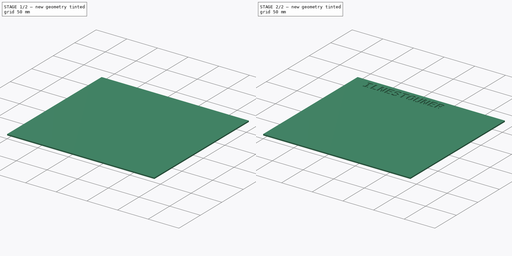
[diagram: build sequence overview — one tinted view per stage of 2, left to right]
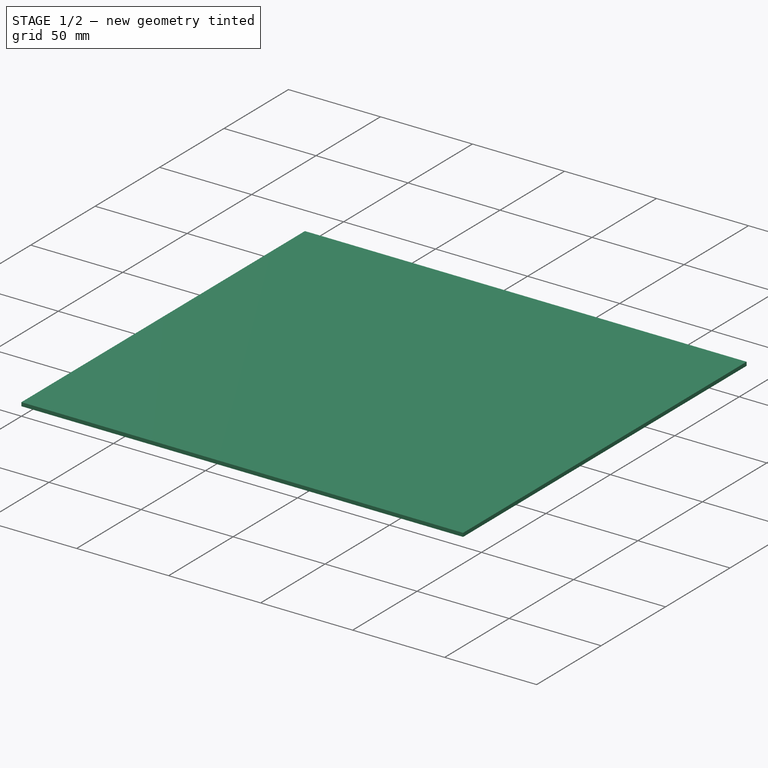
[diagram: stage 1 of 2 — iso view after this stage's code; geometry added in this stage tinted green]
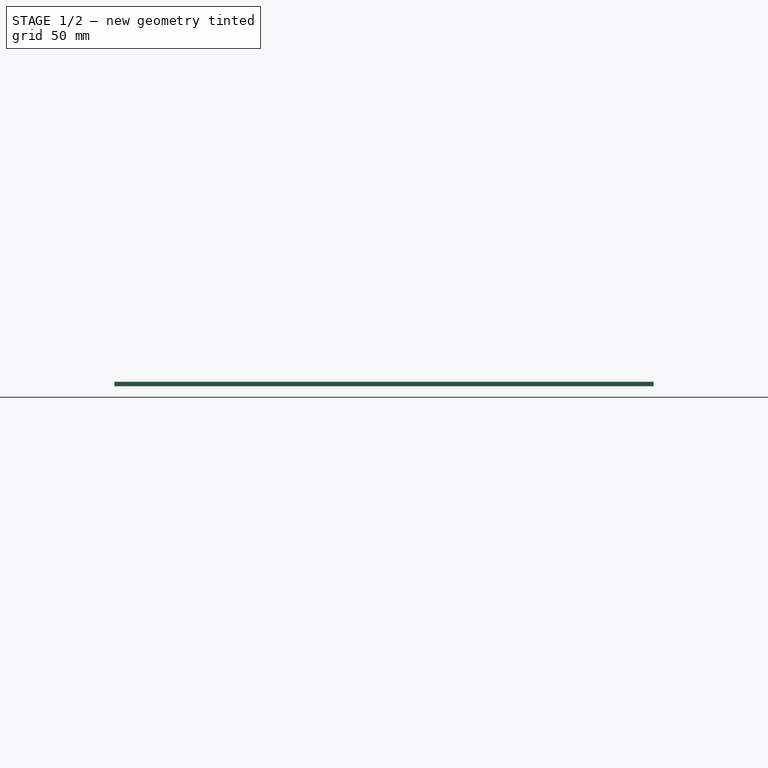
[diagram: stage 1 of 2 — front view after this stage's code; geometry added in this stage tinted green]
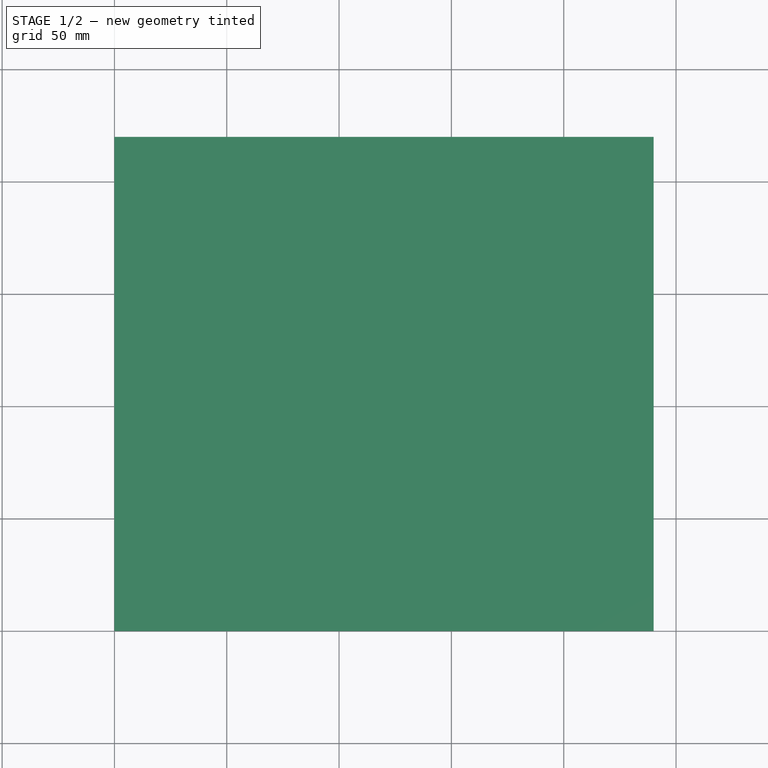
[diagram: stage 1 of 2 — top view after this stage's code; geometry added in this stage tinted green]
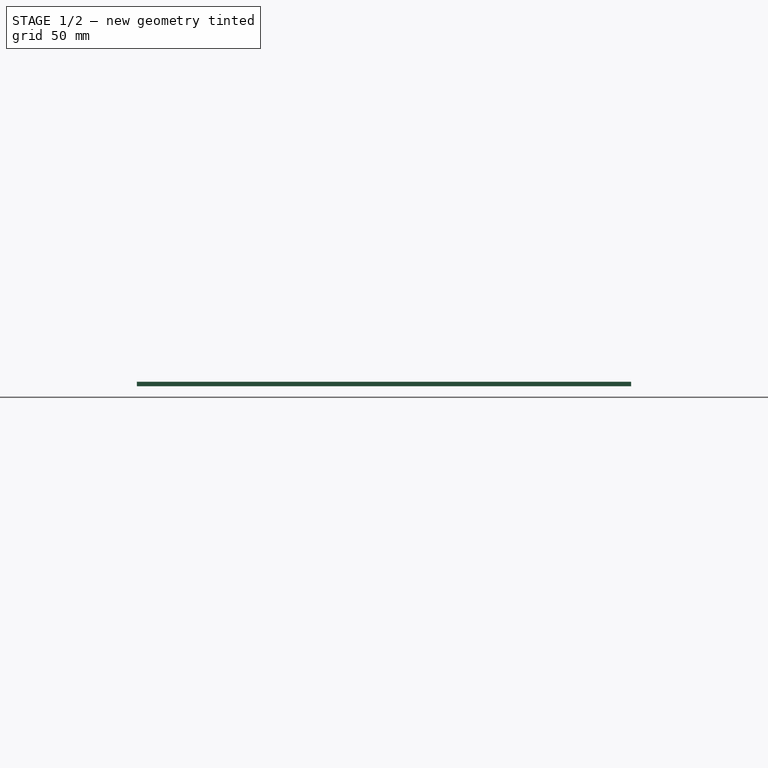
[diagram: stage 1 of 2 — right view after this stage's code; geometry added in this stage tinted green]
FCSTD DOCUMENT  (FreeCAD 0.20R29177 +233 (Git))
Label: world-clock-french
License: All rights reserved
LicenseURL: http://en.wikipedia.org/wiki/All_rights_reserved
objects: Sketcher::SketchObject×2, Spreadsheet::Sheet×1, PartDesign::Pad×1, PartDesign::Body×1, Part::Part2DObjectPython×1, Part::Extrusion×1, Part::Cut×1
note: 8 computed .brp shape members not serialized (recipe doc carries the construction recipe); baked Part::Feature solids carry a one-line shape summary decoded from their .brp

FEATURE [Spreadsheet::Sheet] Spreadsheet
  cells = A1=grid_x; B1(grid_x)=11; A2=grid_y; B2(grid_y)=10; A3=margin; B3(margin)=10; A4=cell_x; B4(cell_x)=20; A5=cell_y; B5(cell_y)=20; A6=first_layer; B6(first_layer)=0.2; A7=overall_width; B7(overall_width)==grid_x * cell_x + 2 * margin; A8=overall_height; B8(overall_height)==grid_y * cell_y + 2 * margin; A9=thickness; B9(thickness)=2; A10=letter_depth; B10(letter_depth)==thickness - first_layer; A11=offset_x; B11(offset_x)=10; A12=offset_y; B12(offset_y)=10; A13=letter_size; B13(letter_size)=15
FEATURE [Sketcher::SketchObject] Sketch
  FullyConstrained = true
  MapMode = 5
  Support = -> [XY_Plane]
  expr: Constraints[10] = Spreadsheet.overall_height
  expr: Constraints[9] = Spreadsheet.overall_width
  sketch-geometry (4):
    g0: LineSegment StartX=0 StartY=0 StartZ=0 EndX=240 EndY=0 EndZ=0
    g1: LineSegment StartX=240 StartY=0 StartZ=0 EndX=240 EndY=220 EndZ=0
    g2: LineSegment StartX=240 StartY=220 StartZ=0 EndX=0 EndY=220 EndZ=0
    g3: LineSegment StartX=0 StartY=220 StartZ=0 EndX=0 EndY=0 EndZ=0
  constraints (11):
    c: Coincident(g0,g1)
    c: Coincident(g1,g2)
    c: Coincident(g2,g3)
    c: Coincident(g3,g0)
    c: Horizontal(g0)
    c: Horizontal(g2)
    c: Vertical(g1)
    c: Vertical(g3)
    c: Coincident(g0,g-1)
    c: DistanceX(g0,g0) = 240
    c: DistanceY(g3,g3) = 220
FEATURE [PartDesign::Pad] Pad
  Direction = (0,0,1)
  Length = 2
  Length2 = 10
  Profile = -> Sketch
  ReferenceAxis = -> Sketch [N_Axis]
  Type = 0
  expr: Length = Spreadsheet.thickness
FEATURE [Sketcher::SketchObject] Sketch001  label="Letters Sketch"
  ExternalGeometry = -> [Pad]
  FullyConstrained = true
  MapMode = 5
  Placement = pos=(0,0,2) rot=(0,0,1;0rad)
  Support = -> [Pad]
  expr: Constraints[10] = Spreadsheet.margin
  expr: Constraints[11] = Spreadsheet.margin
  expr: Constraints[8] = Spreadsheet.margin
  expr: Constraints[9] = Spreadsheet.margin
  sketch-geometry (4):
    g0: LineSegment StartX=10 StartY=10 StartZ=0 EndX=230 EndY=10 EndZ=0
    g1: LineSegment StartX=230 StartY=10 StartZ=0 EndX=230 EndY=210 EndZ=0
    g2: LineSegment StartX=230 StartY=210 StartZ=0 EndX=10 EndY=210 EndZ=0
    g3: LineSegment StartX=10 StartY=210 StartZ=0 EndX=10 EndY=10 EndZ=0
  constraints (12):
    c: Coincident(g0,g1)
    c: Coincident(g1,g2)
    c: Coincident(g2,g3)
    c: Coincident(g3,g0)
    c: Horizontal(g0)
    c: Horizontal(g2)
    c: Vertical(g1)
    c: Vertical(g3)
    c: DistanceX(g-1,g0) = 10
    c: DistanceY(g-1,g0) = 10
    c: DistanceX(g1,g-4) = 10
    c: DistanceY(g1,g-4) = 10
FEATURE [PartDesign::Body] Body
  Group = -> [Sketch,Pad,Sketch001]
  Origin = -> Origin
  Tip = -> Pad
FEATURE [Part::Part2DObjectPython] ShapeString  # Draft 2D object (typed FeaturePython)
  FontFile = /run/user/1000/doc/26ff5bf0/VeraMoBd.ttf
  MakeFace = true
  Placement = pos=(20,200,0.2) rot=(0,0,1;0rad)
  Size = 15
  String = ILNESTOUNER
  Tracking = 0
  expr: .Placement.Base.x = Spreadsheet.margin + Spreadsheet.offset_x
  expr: .Placement.Base.y = Spreadsheet.overall_height - Spreadsheet.margin - Spreadsheet.offset_y
  expr: .Placement.Base.z = Spreadsheet.first_layer
  expr: Size = Spreadsheet.letter_size
FEATURE [Part::Extrusion] Extrude
  Base = -> ShapeString
  Dir = (0,0,1)
  DirMode = 2
  FaceMakerClass = Part::FaceMakerBullseye
  LengthFwd = 1.8
  LengthRev = 0
  Solid = false
  Symmetric = false
  expr: LengthFwd = Spreadsheet.letter_depth
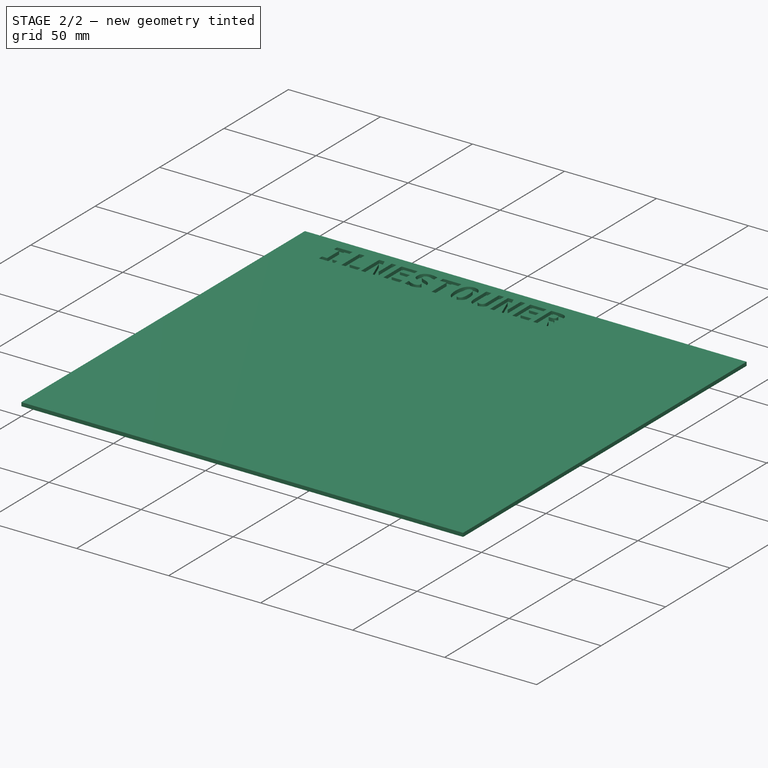
[diagram: stage 2 of 2 — iso view after this stage's code; geometry added in this stage tinted green]
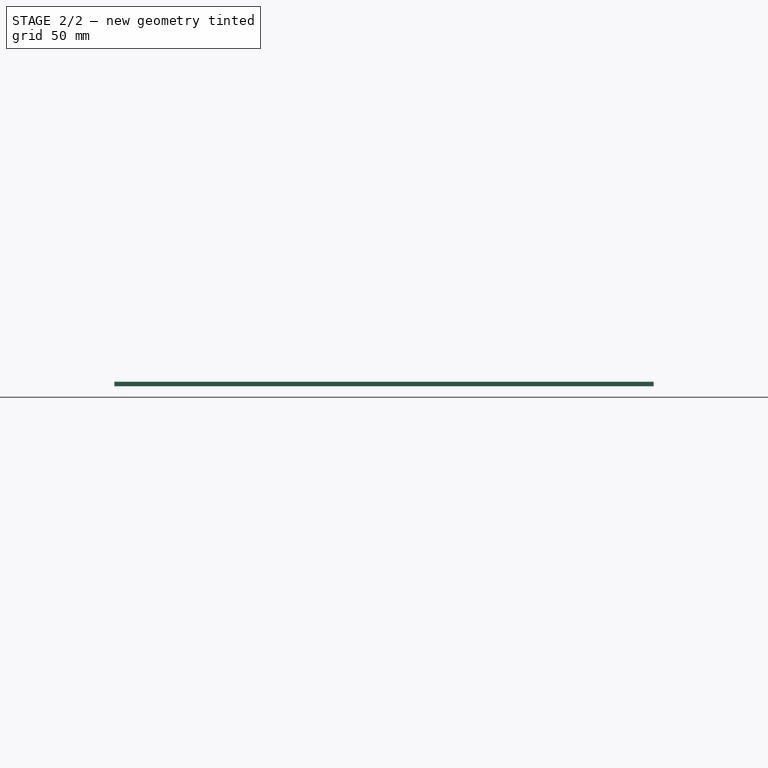
[diagram: stage 2 of 2 — front view after this stage's code; geometry added in this stage tinted green]
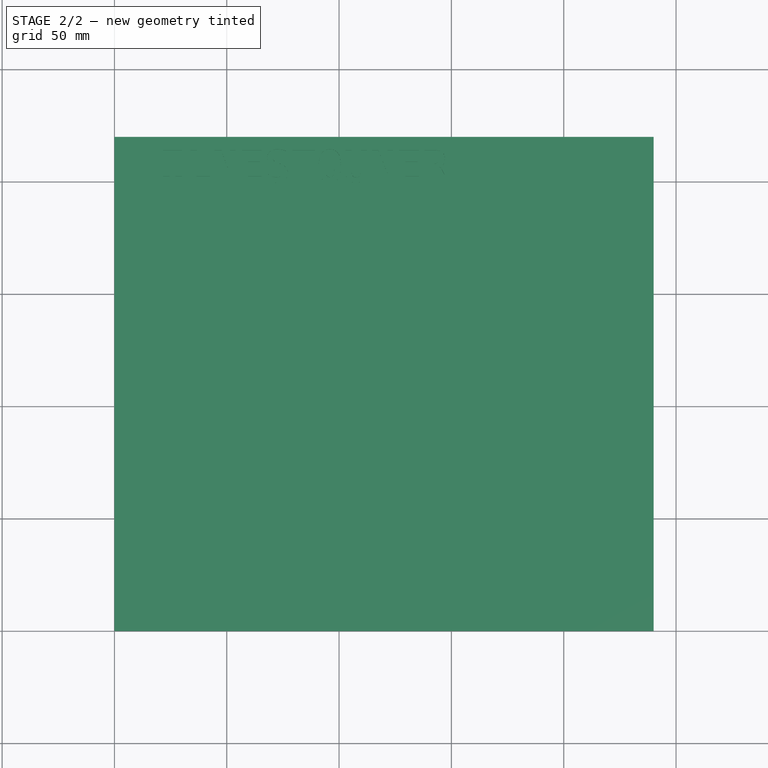
[diagram: stage 2 of 2 — top view after this stage's code; geometry added in this stage tinted green]
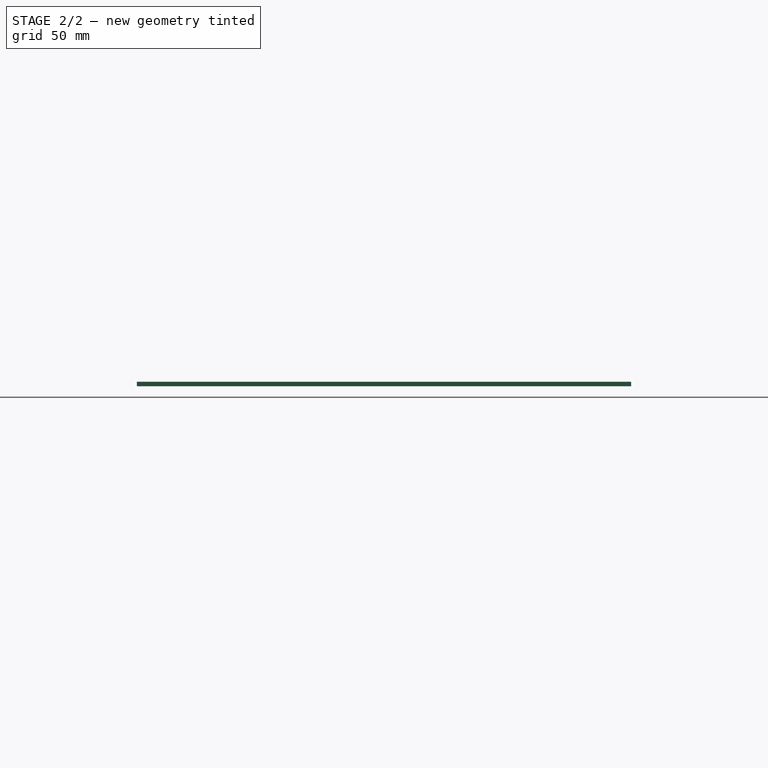
[diagram: stage 2 of 2 — right view after this stage's code; geometry added in this stage tinted green]
FEATURE [Part::Cut] Cut
  Base = -> Pad
  Tool = -> Extrude
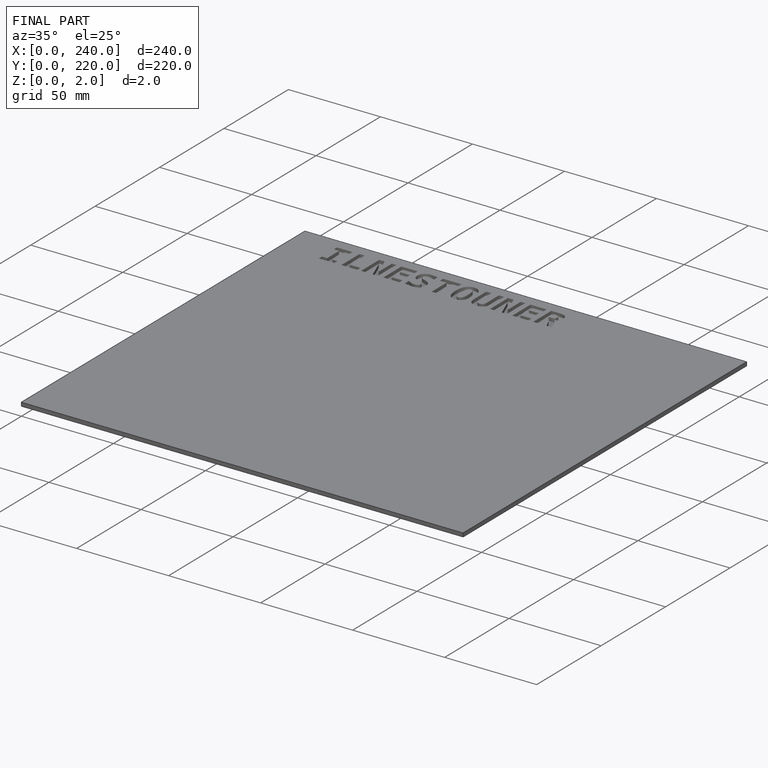
[diagram: finished part — iso view with bounding-box wireframe]
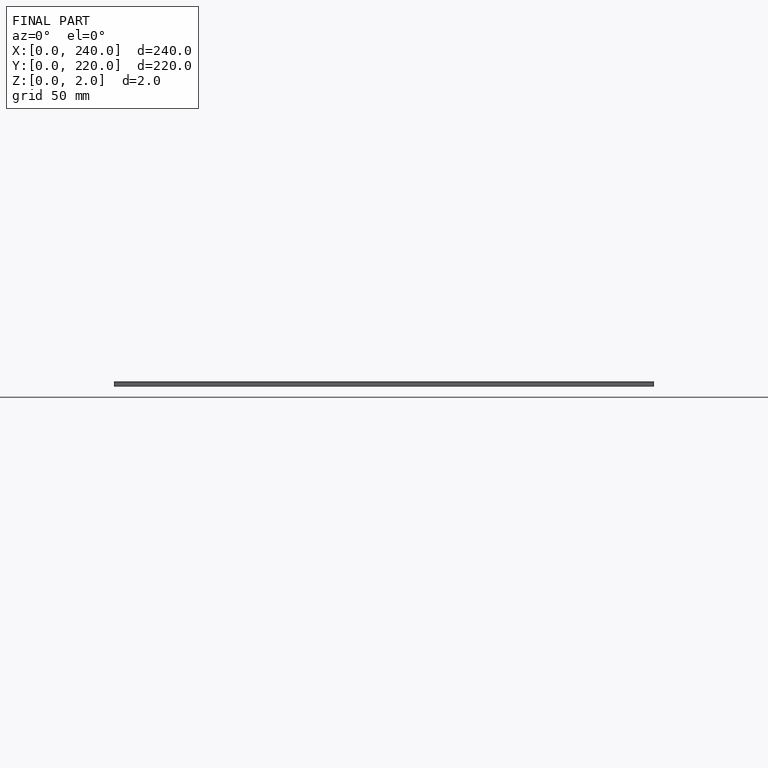
[diagram: finished part — front view with bounding-box wireframe]
